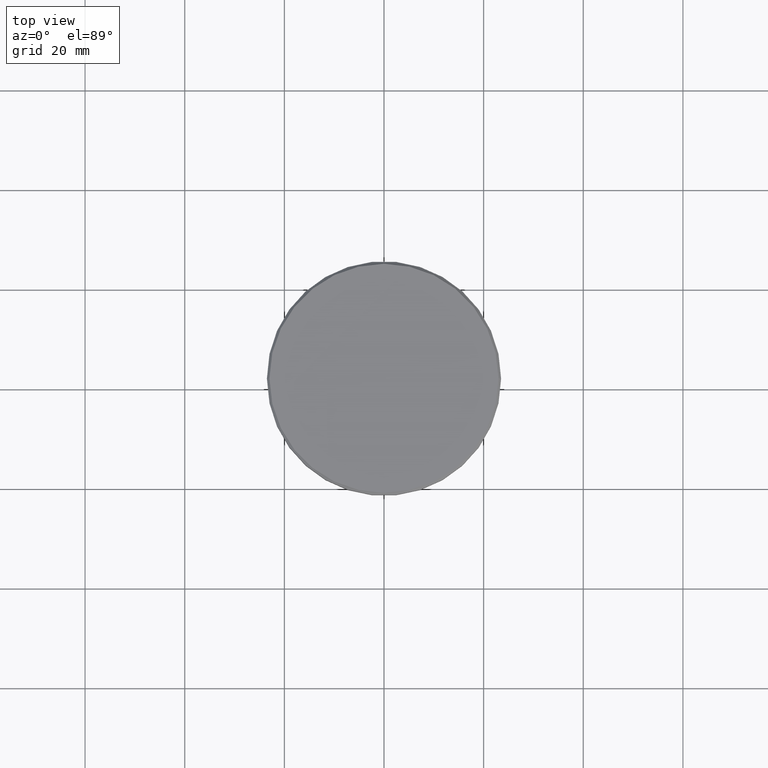
[diagram: clean part render]
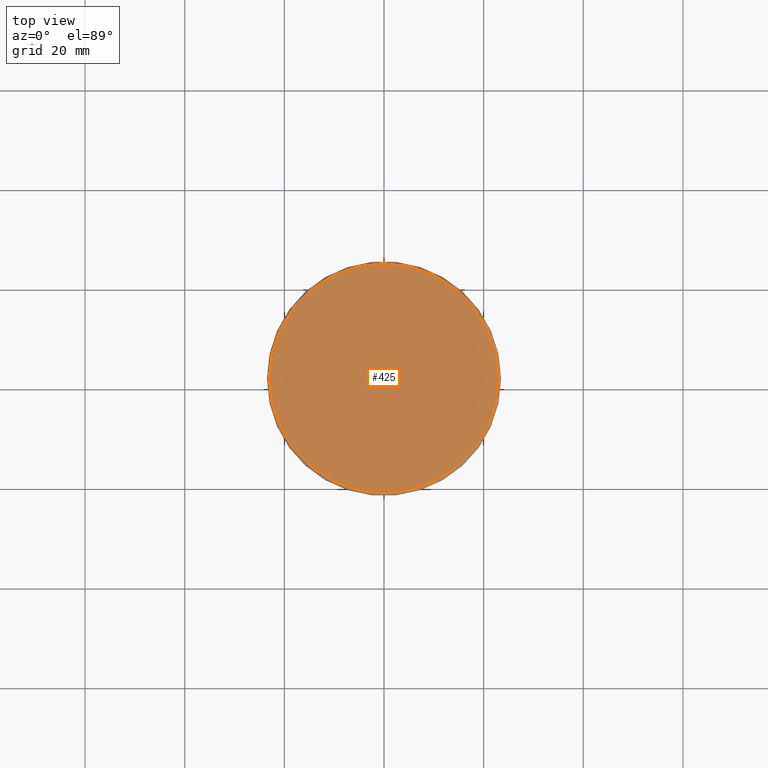
[diagram: same view with one face highlighted and labeled with its STEP entity id]
A machine part, top view. The second image highlights one B-rep face of the part: STEP entity #425.
In plain terms, the highlighted planar face has unit normal (0, -0, 1).
Its self-contained STEP definition (entity closure, byte-faithful):
#48 = VERTEX_POINT ( 'NONE', #213 ) ;
#74 = CIRCLE ( 'NONE', #1182, 23.00000000000001066 ) ;
#85 = CARTESIAN_POINT ( 'NONE',  ( 0.000000000000000000, 0.000000000000000000, 0.000000000000000000 ) ) ;
#92 = DIRECTION ( 'NONE',  ( 1.000000000000000000, 0.000000000000000000, 0.000000000000000000 ) ) ;
#157 = CIRCLE ( 'NONE', #453, 23.00000000000001066 ) ;
#213 = CARTESIAN_POINT ( 'NONE',  ( 23.00000000000001066, 2.847303808017596928E-15, 0.000000000000000000 ) ) ;
#325 = CARTESIAN_POINT ( 'NONE',  ( 0.000000000000000000, 0.000000000000000000, 0.000000000000000000 ) ) ;
#425 = ADVANCED_FACE ( 'NONE', ( #744 ), #554, .T. ) ;
#453 = AXIS2_PLACEMENT_3D ( 'NONE', #987, #620, #703 ) ;
#482 = EDGE_LOOP ( 'NONE', ( #898, #897 ) ) ;
#496 = DIRECTION ( 'NONE',  ( -0.000000000000000000, -0.000000000000000000, 1.000000000000000000 ) ) ;
#554 = PLANE ( 'NONE',  #1123 ) ;
#573 = EDGE_CURVE ( 'NONE', #48, #712, #74, .T. ) ;
#620 = DIRECTION ( 'NONE',  ( -0.000000000000000000, -0.000000000000000000, 1.000000000000000000 ) ) ;
#666 = EDGE_CURVE ( 'NONE', #712, #48, #157, .T. ) ;
#703 = DIRECTION ( 'NONE',  ( 1.000000000000000000, 0.000000000000000000, 0.000000000000000000 ) ) ;
#712 = VERTEX_POINT ( 'NONE', #872 ) ;
#744 = FACE_OUTER_BOUND ( 'NONE', #482, .T. ) ;
#867 = DIRECTION ( 'NONE',  ( 1.000000000000000000, 0.000000000000000000, 0.000000000000000000 ) ) ;
#872 = CARTESIAN_POINT ( 'NONE',  ( -23.00000000000001066, 0.000000000000000000, 0.000000000000000000 ) ) ;
#897 = ORIENTED_EDGE ( 'NONE', *, *, #573, .T. ) ;
#898 = ORIENTED_EDGE ( 'NONE', *, *, #666, .T. ) ;
#987 = CARTESIAN_POINT ( 'NONE',  ( 0.000000000000000000, 0.000000000000000000, 0.000000000000000000 ) ) ;
#1001 = DIRECTION ( 'NONE',  ( 0.000000000000000000, -0.000000000000000000, 1.000000000000000000 ) ) ;
#1123 = AXIS2_PLACEMENT_3D ( 'NONE', #85, #1001, #92 ) ;
#1182 = AXIS2_PLACEMENT_3D ( 'NONE', #325, #496, #867 ) ;